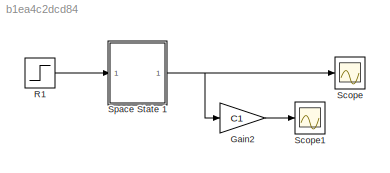
MODEL slx_b1ea4c2dcd84
KIND model
CONFIG AbsTol = auto
CONFIG EnableMultiTasking = off
CONFIG FixedStep = auto
CONFIG MaxStep = auto
CONFIG MinStep = auto
CONFIG RelTol = 1e-3
CONFIG SampleTimeConstraint = Unconstrained
CONFIG SolverName = VariableStepAuto
CONFIG StartTime = 0.0
CONFIG StopTime = 5
BLOCK [Gain] Gain2
  Gain = C1
  Multiplication = Matrix(K*u)
BLOCK [Step] R1
  SampleTime = 0
  Time = 0
BLOCK [Scope] Scope
  Floating = off
  NumInputPorts = 1
  Ports = [1]
  ScopeSpecificationString = Simulink.scopes.TimeScopeBlockCfg('CurrentConfiguration', extmgr.ConfigurationSet(extmgr.Configuration('Core','General UI',true),extmgr.Configuration('Core','Source UI',true),extmgr.Configuration('Sources','WiredSimulink',true),extmgr.Configuration('Visuals','Time Domain',true,'SerializedDisplays',{struct('MinYLimReal','-0.32813','MaxYLimReal','2.95313','YLabelReal','','MinYLimMag','0.00000','MaxY...<+1371ch>
BLOCK [Scope] Scope1
  Floating = off
  NumInputPorts = 1
  Ports = [1]
  ScopeSpecificationString = Simulink.scopes.TimeScopeBlockCfg('CurrentConfiguration', extmgr.ConfigurationSet(extmgr.Configuration('Core','General UI',true),extmgr.Configuration('Core','Source UI',true),extmgr.Configuration('Sources','WiredSimulink',true,'DataLoggingVariableName','ScopeData1'),extmgr.Configuration('Visuals','Time Domain',true,'SerializedDisplays',{struct('MinYLimReal','-0.32813','MaxYLimReal','2.95313','YLab...<+1410ch>
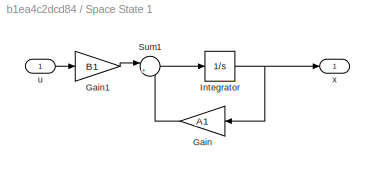
BLOCK [SubSystem] Space State 1
  Ports = [1, 1]
  RequestExecContextInheritance = off
BLOCK [Gain] Space State 1/Gain
  Gain = A1
  Multiplication = Matrix(K*u)
  NameLocation = top
BLOCK [Gain] Space State 1/Gain1
  Gain = B1
  Multiplication = Matrix(K*u)
BLOCK [Integrator] Space State 1/Integrator
  InitialCondition = x10
  Ports = [1, 1]
BLOCK [Sum] Space State 1/Sum1
  Inputs = |++
  Ports = [2, 1]
BLOCK [Inport] Space State 1/u
BLOCK [Outport] Space State 1/x
LINE Gain2:1 -> Scope1:1
LINE R1:1 -> Space State 1:1
LINE Space State 1/Gain1:1 -> Space State 1/Sum1:1
LINE Space State 1/Gain:1 -> Space State 1/Sum1:2
NET Space State 1/Integrator:1 -> Space State 1/Gain:1, Space State 1/x:1
LINE Space State 1/Sum1:1 -> Space State 1/Integrator:1
LINE Space State 1/u:1 -> Space State 1/Gain1:1
NET Space State 1:1 -> Gain2:1, Scope:1
note: NET lines group one-source signal fan-out (src -> all destinations, sorted); 1:1 wires keep LINE
